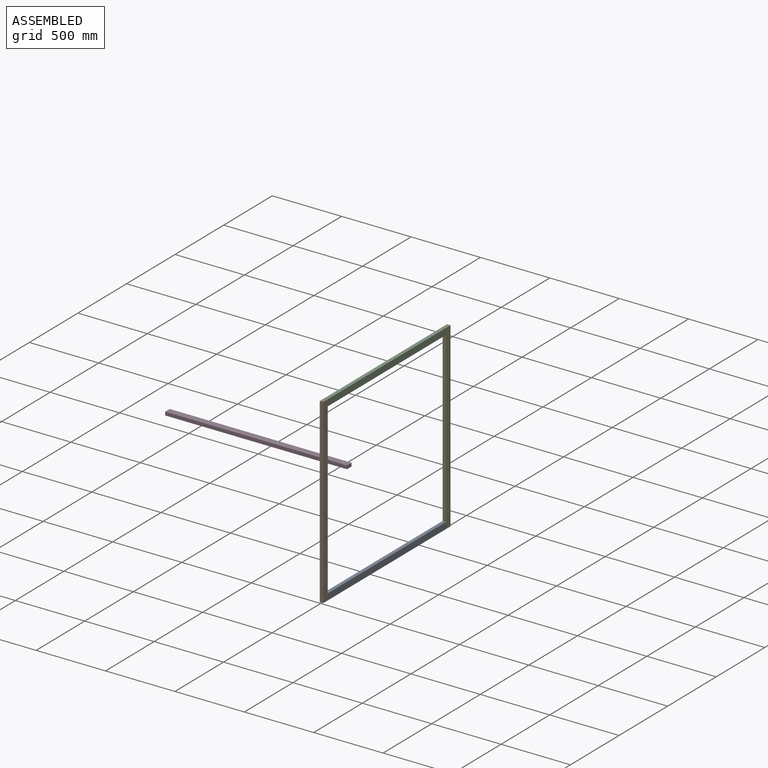
[diagram: assembled view]
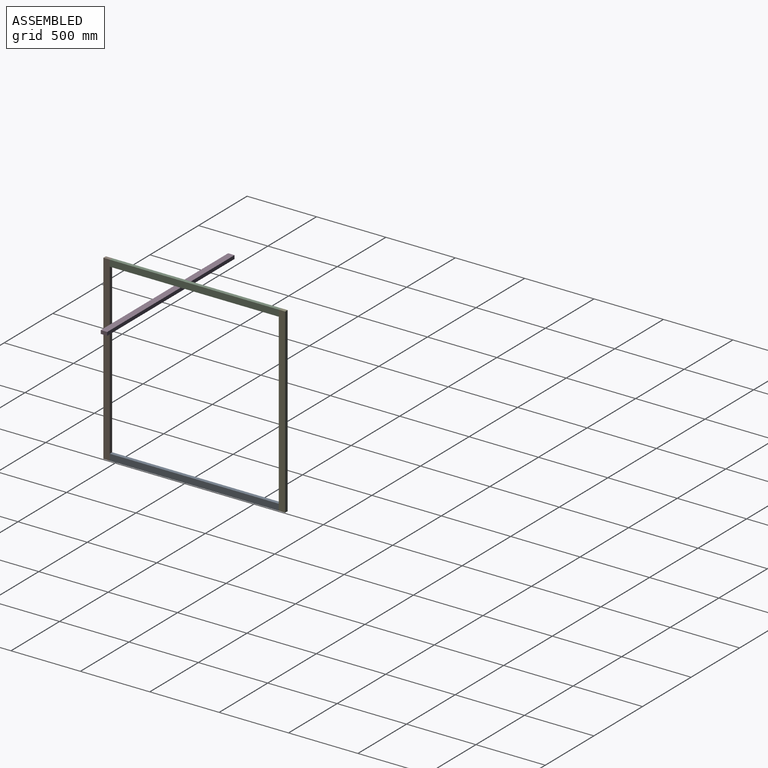
[diagram: assembled view, second angle]
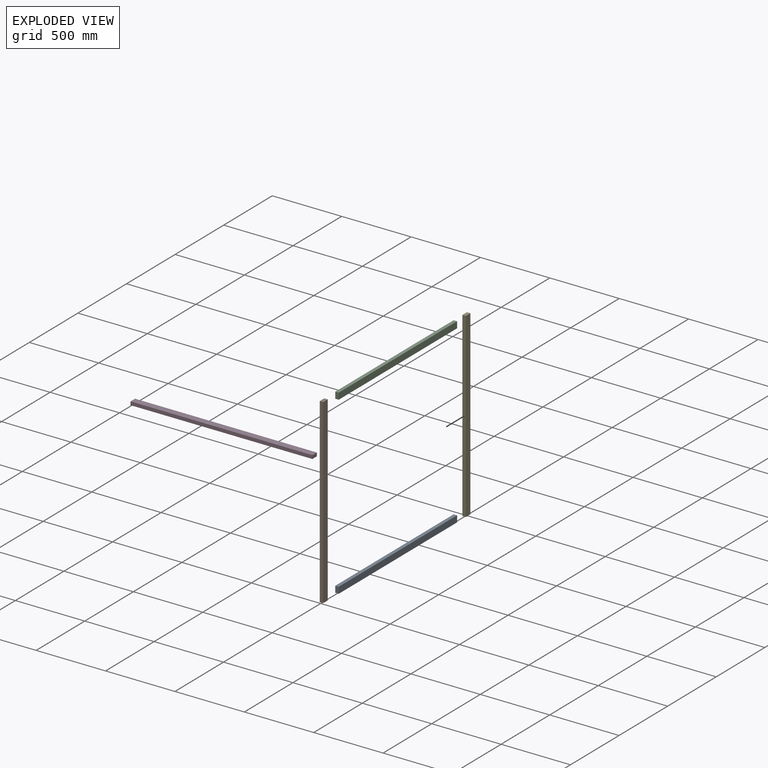
[diagram: exploded view]
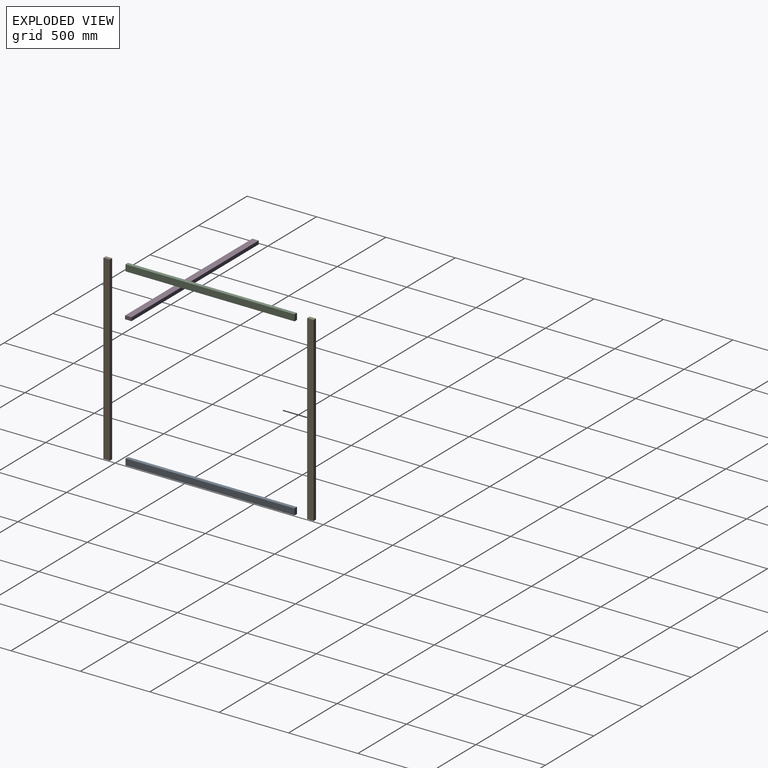
[diagram: exploded view, second angle]
ASSEMBLY  parts=4 mates=3
PART A: 6 faces, bbox 1218x46x25 mm
  f0: plane 46x25mm, normal (-1,0,0), area 1150mm2, adj f1,f3,f4,f5
  f1: plane 1218x25mm, normal (0,-1,0), area 30450mm2, adj f0,f2,f4,f5
  f2: plane 46x25mm, normal (1,0,0), area 1150mm2, adj f1,f3,f4,f5
  f3: plane 1218x25mm, normal (0,1,0), area 30450mm2, adj f0,f2,f4,f5
  f4: plane 1218x46mm, normal (0,0,1), area 56028mm2, adj f0,f1,f2,f3
  f5: plane 1218x46mm, normal (0,0,-1), area 56028mm2, adj f0,f1,f2,f3
PART B: 6 faces, bbox 1310x46x25 mm
  f0: plane 46x25mm, normal (-1,0,0), area 1150mm2, adj f1,f3,f4,f5
  f1: plane 1310x25mm, normal (0,-1,0), area 32750mm2, adj f0,f2,f4,f5
  f2: plane 46x25mm, normal (1,0,0), area 1150mm2, adj f1,f3,f4,f5
  f3: plane 1310x25mm, normal (0,1,0), area 32750mm2, adj f0,f2,f4,f5
  f4: plane 1310x46mm, normal (0,0,1), area 60260mm2, adj f0,f1,f2,f3
  f5: plane 1310x46mm, normal (0,0,-1), area 60260mm2, adj f0,f1,f2,f3
PART C: same geometry as A
PART D: same geometry as B
PLACE A rot(axis=(0.58,-0.58,-0.58),120deg) t=(552.11,606.88,-822.32)mm
PLACE B rot(axis=(0,1,0),90deg) t=(527.11,-25.12,-190.32)mm
PLACE C rot(axis=(-0.58,-0.58,0.58),120deg) t=(552.11,606.88,441.68)mm
PLACE D rot(axis=(0,1,0),90deg) t=(527.11,1238.88,-190.32)mm
MATE fastened C.f2 <-> D.f1  axis (0,1,0) through (527.11,1215.88,464.68)mm
MATE fastened B.f3 <-> A.f2  axis (0,1,0) through (552.11,-2.12,-845.32)mm
MATE fastened B.f3 <-> C.f0  axis (0,1,0) through (527.11,-2.12,464.68)mm
